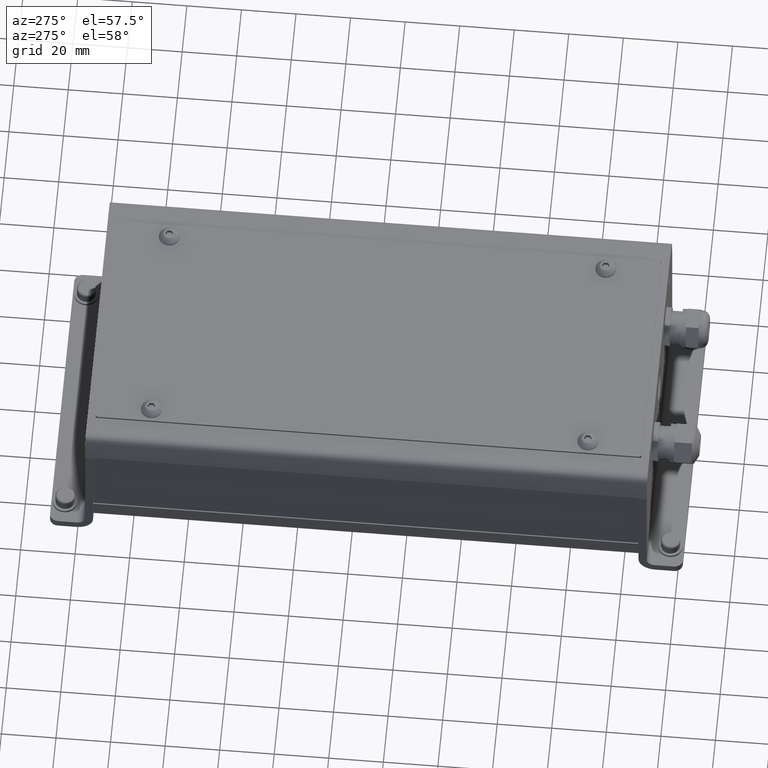
[diagram: clean part render]
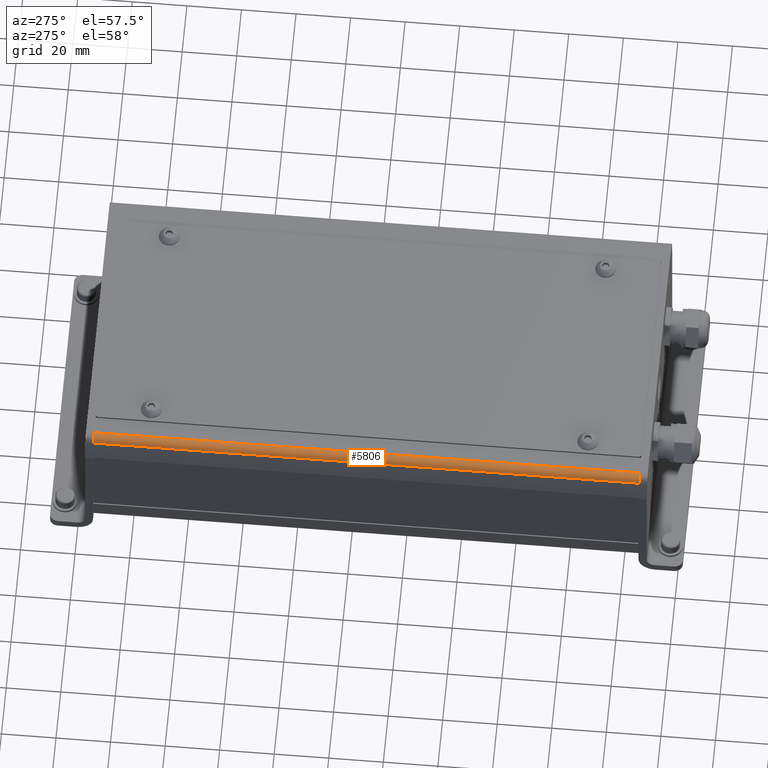
[diagram: same view with one face highlighted and labeled with its STEP entity id]
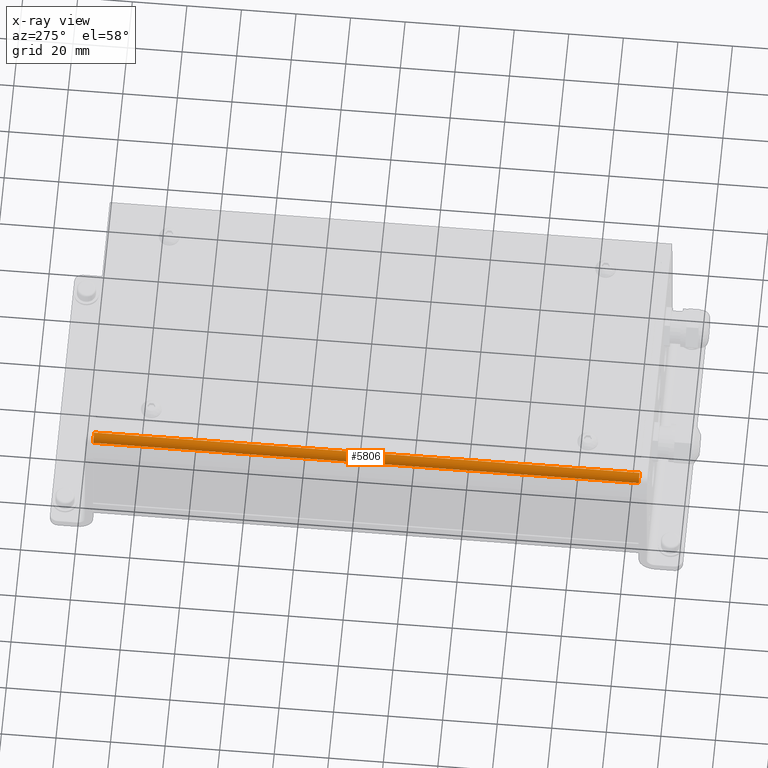
[diagram: x-ray of the same camera — body ghosted, the highlighted face saturated]
A machine part, auxiliary view. The second image highlights one B-rep face of the part: STEP entity #5806.
The next image is the same camera in x-ray: the body ghosted, the highlighted face saturated — about 0% of this face is hidden behind the body in this view.
In plain terms, the highlighted cylindrical surface (edge-blend (fillet) strip) has radius 3 mm, axis along (0, -1, 0).
Its self-contained STEP definition (entity closure, byte-faithful):
#5746=CARTESIAN_POINT('',(-52.037496744025191,23.618834080717289,99.999999999999943));
#5747=VERTEX_POINT('',#5746);
#5755=CARTESIAN_POINT('',(-52.037496744025191,23.618834080717289,-100.0));
#5756=VERTEX_POINT('',#5755);
#5757=CARTESIAN_POINT('',(-52.037496744025191,23.618834080717289,-100.0));
#5758=DIRECTION('',(0.0,0.0,1.0));
#5759=VECTOR('',#5758,199.999999999999940);
#5760=LINE('',#5757,#5759);
#5761=EDGE_CURVE('',#5756,#5747,#5760,.T.);
#5774=CARTESIAN_POINT('',(-49.102016479989629,22.999999999999581,-100.0));
#5775=DIRECTION('',(0.0,0.0,1.0));
#5776=DIRECTION('',(1.0,0.0,0.0));
#5777=AXIS2_PLACEMENT_3D('',#5774,#5775,#5776);
#5778=CYLINDRICAL_SURFACE('',#5777,3.0);
#5779=CARTESIAN_POINT('',(-49.102016479989629,25.999999999999581,99.999999999999943));
#5780=VERTEX_POINT('',#5779);
#5781=CARTESIAN_POINT('',(-49.102016479989629,22.999999999999581,100.0));
#5782=DIRECTION('',(0.0,0.0,-1.0));
#5783=DIRECTION('',(1.0,0.0,0.0));
#5784=AXIS2_PLACEMENT_3D('',#5781,#5782,#5783);
#5785=CIRCLE('',#5784,3.0);
#5786=EDGE_CURVE('',#5747,#5780,#5785,.T.);
#5787=ORIENTED_EDGE('',*,*,#5786,.T.);
#5788=CARTESIAN_POINT('',(-49.102016479989629,25.999999999999581,-100.0));
#5789=VERTEX_POINT('',#5788);
#5790=CARTESIAN_POINT('',(-49.102016479989629,25.999999999999581,-100.0));
#5791=DIRECTION('',(0.0,0.0,1.0));
#5792=VECTOR('',#5791,199.999999999999940);
#5793=LINE('',#5790,#5792);
#5794=EDGE_CURVE('',#5789,#5780,#5793,.T.);
#5795=ORIENTED_EDGE('',*,*,#5794,.F.);
#5796=CARTESIAN_POINT('',(-49.102016479989629,22.999999999999581,-100.0));
#5797=DIRECTION('',(0.0,0.0,-1.0));
#5798=DIRECTION('',(1.0,0.0,0.0));
#5799=AXIS2_PLACEMENT_3D('',#5796,#5797,#5798);
#5800=CIRCLE('',#5799,3.0);
#5801=EDGE_CURVE('',#5756,#5789,#5800,.T.);
#5802=ORIENTED_EDGE('',*,*,#5801,.F.);
#5803=ORIENTED_EDGE('',*,*,#5761,.T.);
#5804=EDGE_LOOP('',(#5787,#5795,#5802,#5803));
#5805=FACE_OUTER_BOUND('',#5804,.T.);
#5806=ADVANCED_FACE('',(#5805),#5778,.T.);